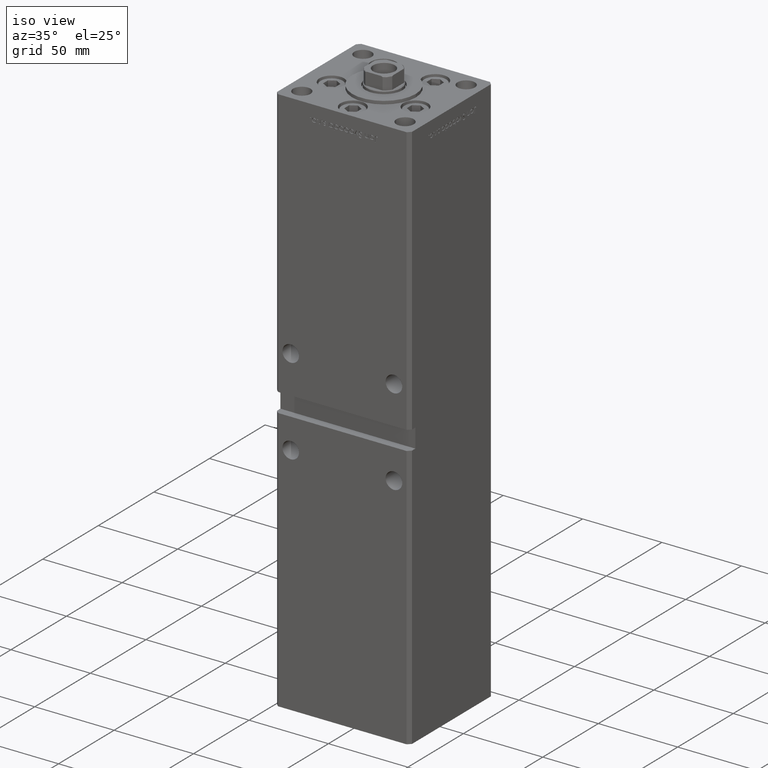
[diagram: clean part render]
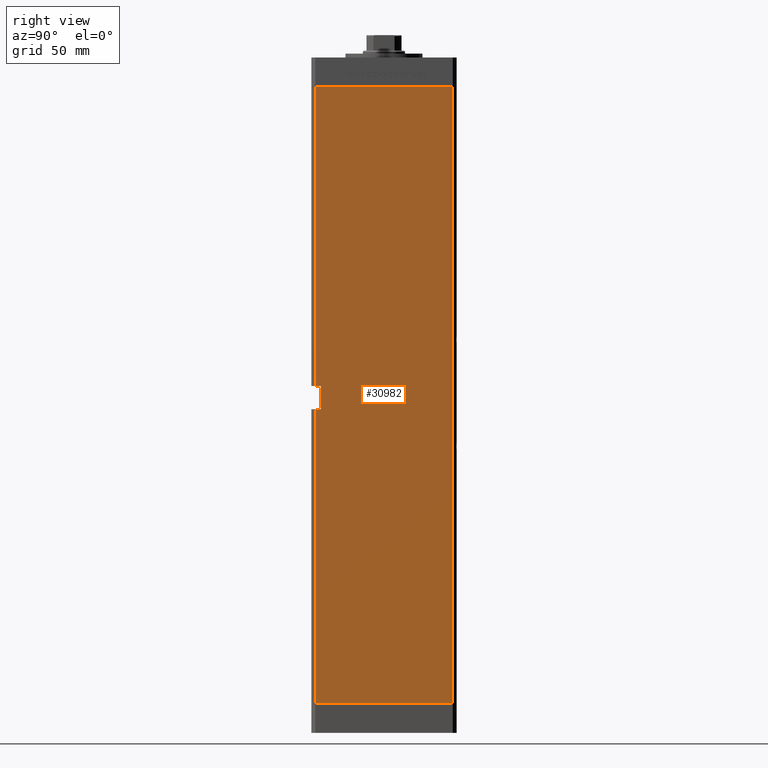
[diagram: tour spotlight — one face highlighted and labeled with its STEP entity id]
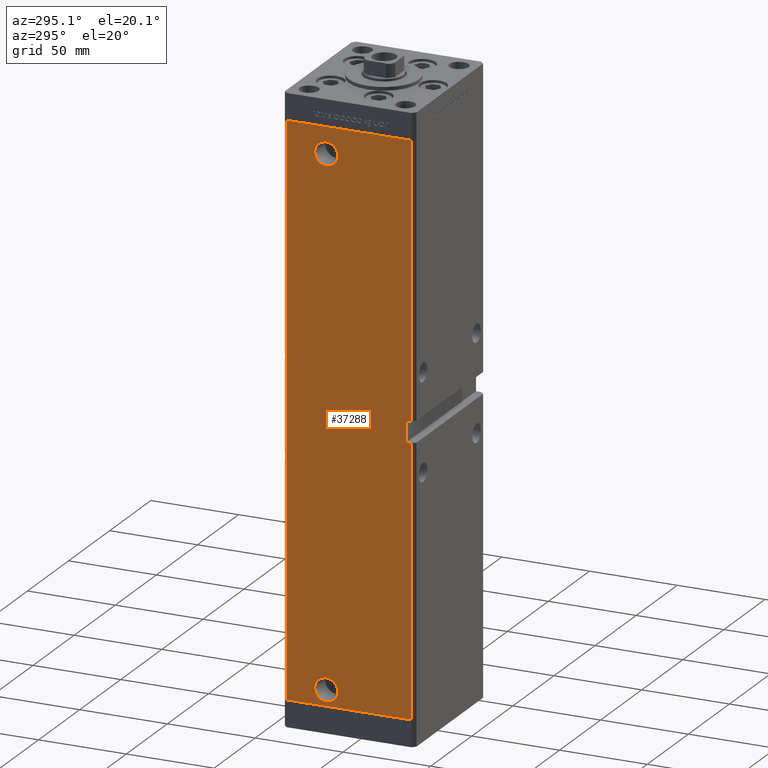
[diagram: tour spotlight — one face highlighted and labeled with its STEP entity id]
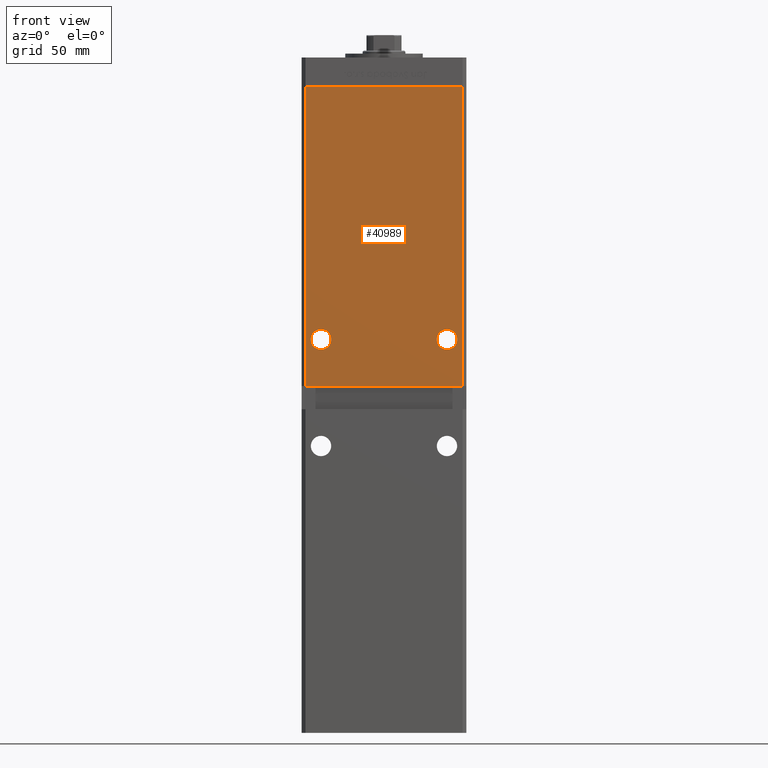
[diagram: tour spotlight — one face highlighted and labeled with its STEP entity id]
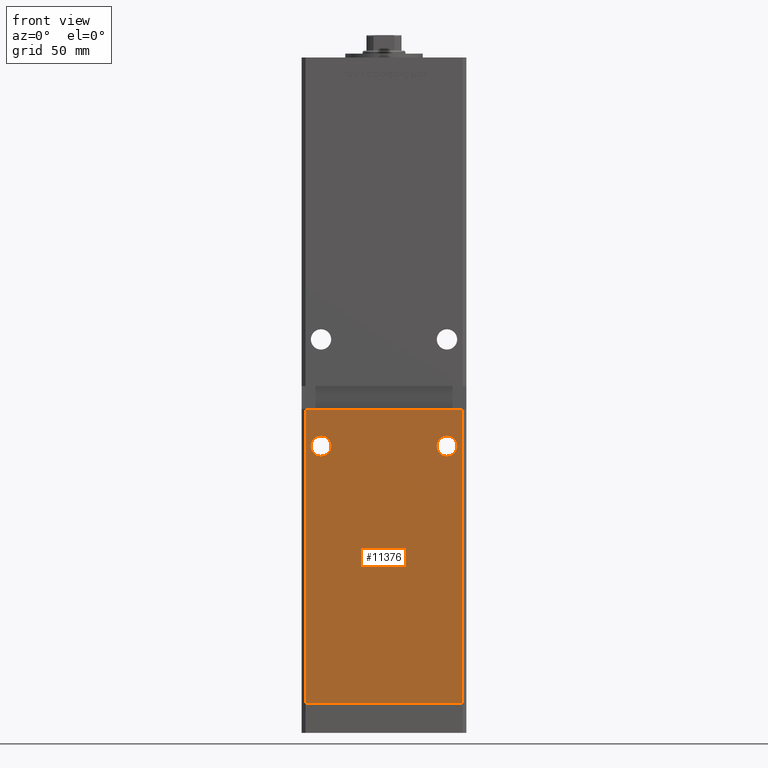
[diagram: tour spotlight — one face highlighted and labeled with its STEP entity id]
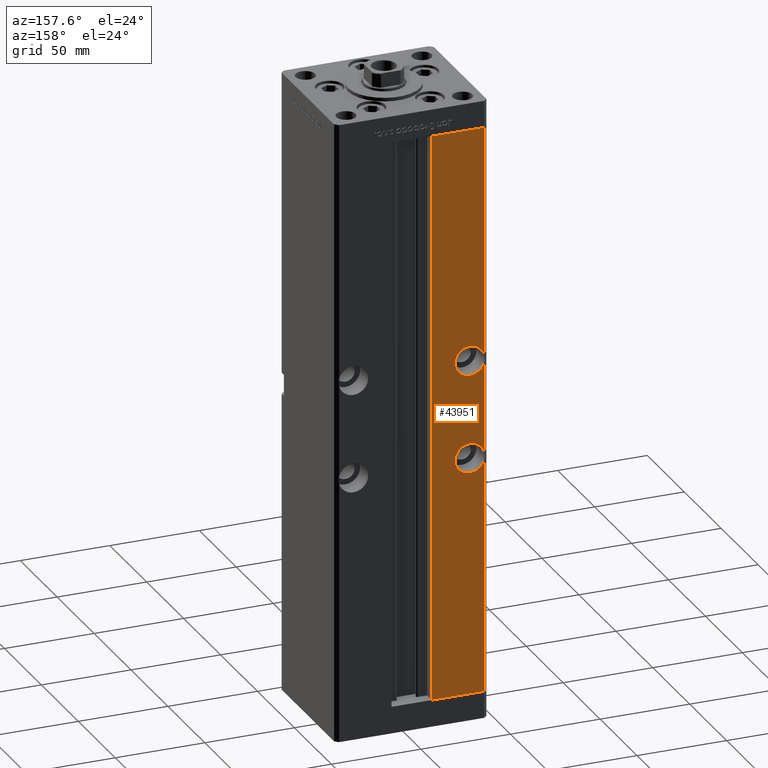
[diagram: tour spotlight — one face highlighted and labeled with its STEP entity id]
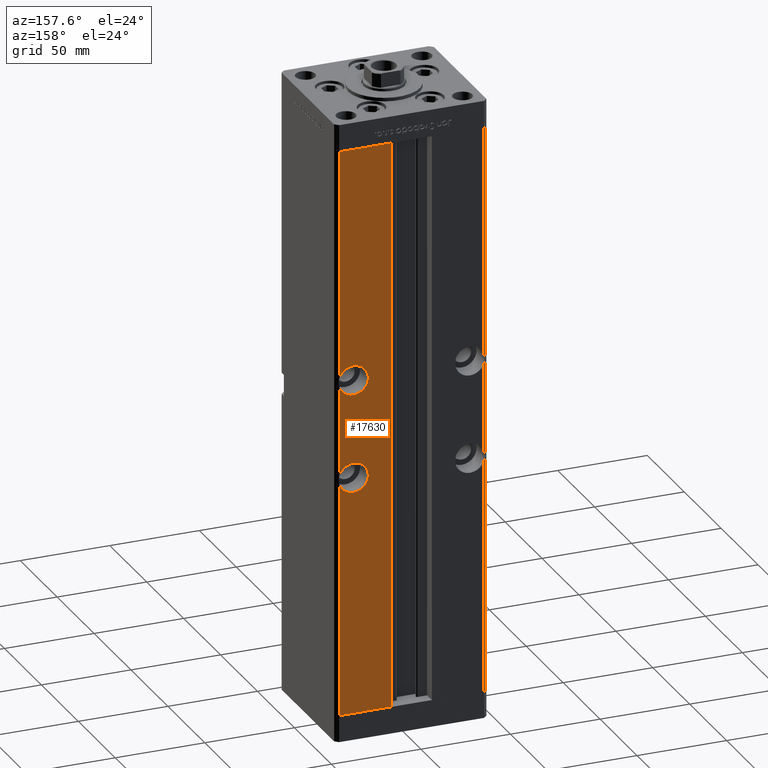
[diagram: tour spotlight — one face highlighted and labeled with its STEP entity id]
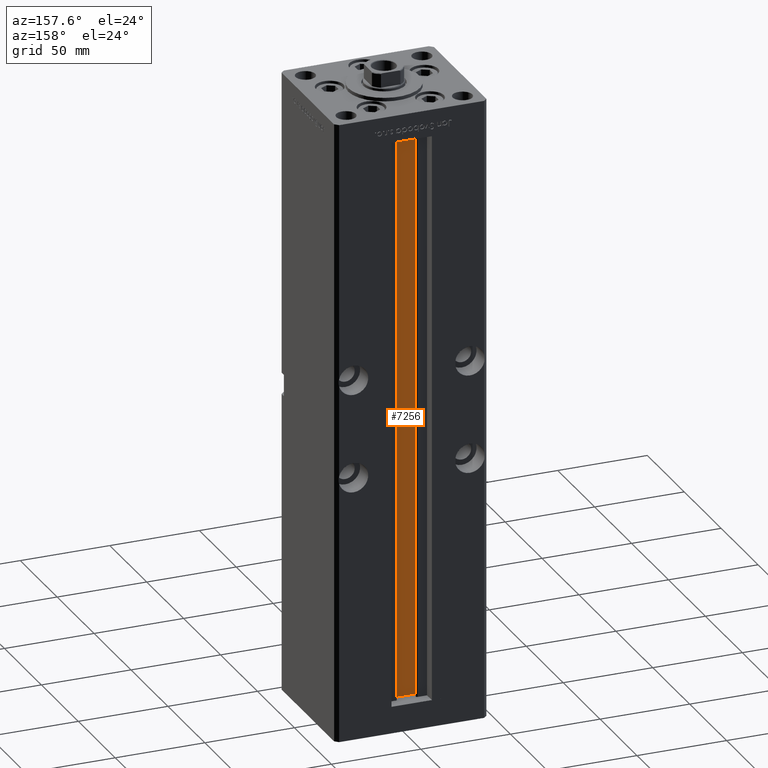
[diagram: tour spotlight — one face highlighted and labeled with its STEP entity id]
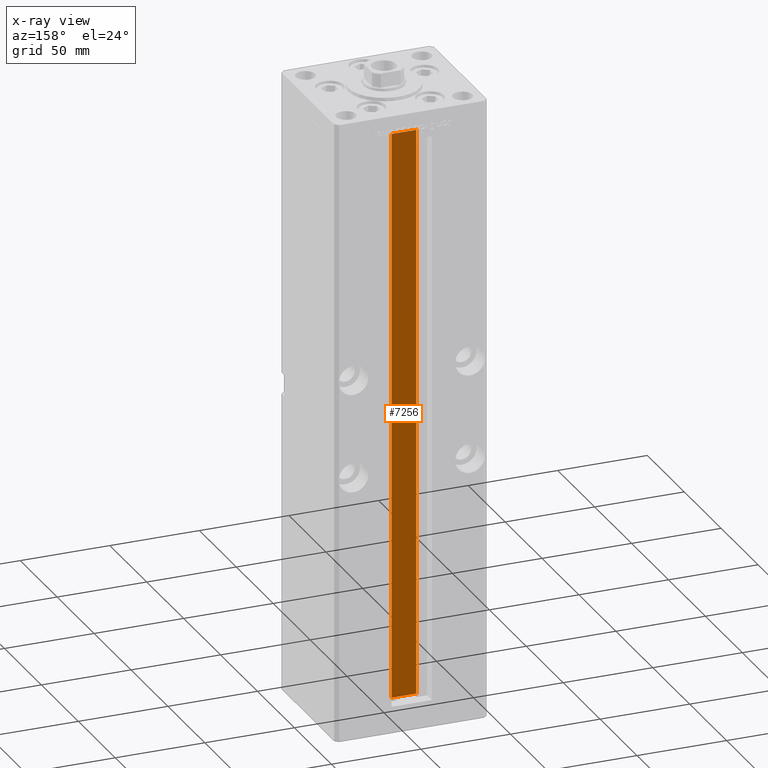
[diagram: x-ray of the same camera — body ghosted, this tour face saturated]
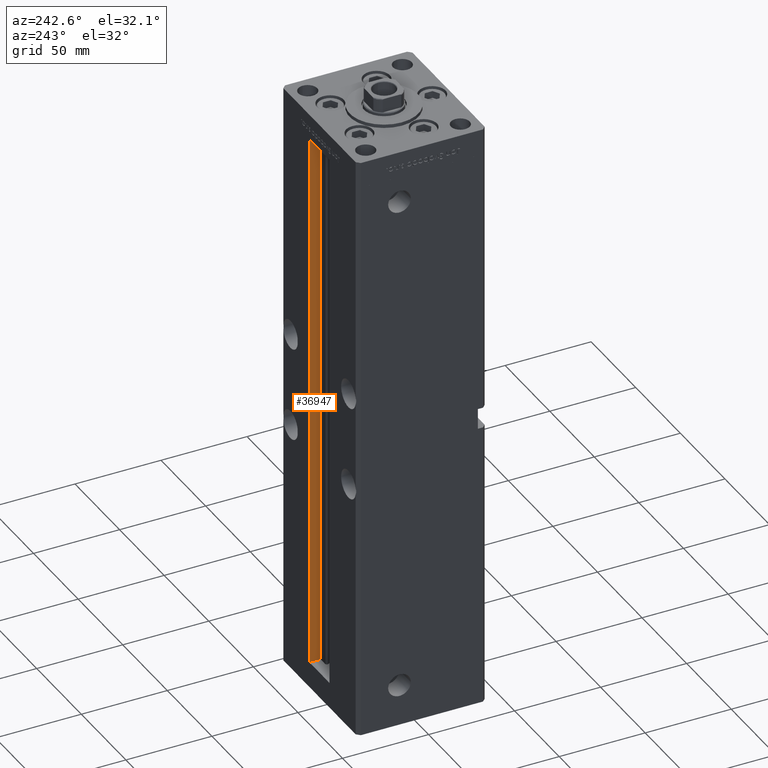
[diagram: tour spotlight — one face highlighted and labeled with its STEP entity id]
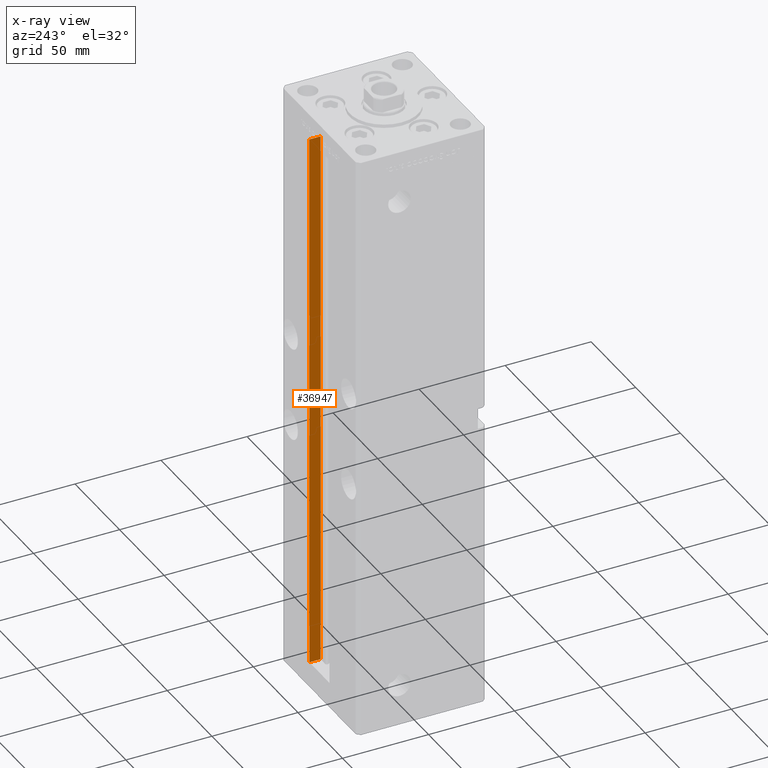
[diagram: x-ray of the same camera — body ghosted, this tour face saturated]
A machine part: a face-by-face anatomy tour. The part has 1212 B-rep faces; the first image is the clean iso view, then the 8 largest visible faces are spotlighted one at a time (largest first), each with its STEP entity span.

Face 1 — right view, entity #30982. In plain terms, the highlighted planar face has unit normal (1, -0, 0).
Definition (entity closure, byte-faithful):
#895 = AXIS2_PLACEMENT_3D ( 'NONE', #47199, #49003, #20256 ) ;
#1076 = LINE ( 'NONE', #43503, #40846 ) ;
#1231 = EDGE_LOOP ( 'NONE', ( #7639, #21067, #43613, #42086, #30536, #13063, #3283, #7102 ) ) ;
#1660 = LINE ( 'NONE', #18049, #21971 ) ;
#3283 = ORIENTED_EDGE ( 'NONE', *, *, #15319, .F. ) ;
#3385 = CARTESIAN_POINT ( 'NONE',  ( 42.50000000000001421, 35.50000000000000711, 318.5000000000000000 ) ) ;
#5514 = VECTOR ( 'NONE', #14368, 1000.000000000000000 ) ;
#6686 = DIRECTION ( 'NONE',  ( -3.909236002201255146E-16, -1.000000000000000000, 0.000000000000000000 ) ) ;
#6778 = CARTESIAN_POINT ( 'NONE',  ( 42.49999999999998579, -35.50000000000000711, 318.5000000000000000 ) ) ;
#6928 = LINE ( 'NONE', #31400, #32256 ) ;
#7102 = ORIENTED_EDGE ( 'NONE', *, *, #15494, .F. ) ;
#7639 = ORIENTED_EDGE ( 'NONE', *, *, #8468, .T. ) ;
#8254 = VECTOR ( 'NONE', #21694, 1000.000000000000000 ) ;
#8468 = EDGE_CURVE ( 'NONE', #19812, #30968, #6928, .T. ) ;
#9122 = VECTOR ( 'NONE', #12567, 1000.000000000000000 ) ;
#9615 = EDGE_CURVE ( 'NONE', #18146, #49271, #44484, .T. ) ;
#9982 = EDGE_CURVE ( 'NONE', #18146, #40383, #1076, .T. ) ;
#10177 = EDGE_CURVE ( 'NONE', #30968, #15650, #52900, .T. ) ;
#12567 = DIRECTION ( 'NONE',  ( -0.000000000000000000, -0.000000000000000000, -1.000000000000000000 ) ) ;
#13063 = ORIENTED_EDGE ( 'NONE', *, *, #51801, .T. ) ;
#14368 = DIRECTION ( 'NONE',  ( -3.909236002201255146E-16, -1.000000000000000000, 0.000000000000000000 ) ) ;
#15319 = EDGE_CURVE ( 'NONE', #50616, #48752, #43512, .T. ) ;
#15494 = EDGE_CURVE ( 'NONE', #19812, #50616, #33541, .T. ) ;
#15650 = VERTEX_POINT ( 'NONE', #19240 ) ;
#16204 = CARTESIAN_POINT ( 'NONE',  ( 42.49999999999999289, -35.50000000000000711, 152.0000000000000568 ) ) ;
#18049 = CARTESIAN_POINT ( 'NONE',  ( 42.49999999999998579, -35.50000000000000711, 318.5000000000000000 ) ) ;
#18146 = VERTEX_POINT ( 'NONE', #23468 ) ;
#18401 = CARTESIAN_POINT ( 'NONE',  ( 42.49999999999999289, -32.50000000000000711, 164.0000000000000568 ) ) ;
#19240 = CARTESIAN_POINT ( 'NONE',  ( 42.49999999999998579, -35.50000000000000711, 0.000000000000000000 ) ) ;
#19812 = VERTEX_POINT ( 'NONE', #53096 ) ;
#20256 = DIRECTION ( 'NONE',  ( 3.909236002201255146E-16, 1.000000000000000000, 0.000000000000000000 ) ) ;
#21067 = ORIENTED_EDGE ( 'NONE', *, *, #10177, .T. ) ;
#21694 = DIRECTION ( 'NONE',  ( -0.000000000000000000, -0.000000000000000000, 1.000000000000000000 ) ) ;
#21971 = VECTOR ( 'NONE', #34444, 1000.000000000000000 ) ;
#22968 = CARTESIAN_POINT ( 'NONE',  ( 42.50000000000001421, 35.50000000000000711, 0.000000000000000000 ) ) ;
#23408 = CARTESIAN_POINT ( 'NONE',  ( 42.49999999999999289, -35.50000000000000711, 164.0000000000000568 ) ) ;
#23468 = CARTESIAN_POINT ( 'NONE',  ( 42.50000000000001421, 35.50000000000000711, 318.5000000000000000 ) ) ;
#24268 = PLANE ( 'NONE',  #895 ) ;
#24675 = CARTESIAN_POINT ( 'NONE',  ( 42.50000000000001421, 35.50000000000000711, 0.000000000000000000 ) ) ;
#26831 = DIRECTION ( 'NONE',  ( -0.000000000000000000, -1.000000000000000000, -0.000000000000000000 ) ) ;
#30295 = CARTESIAN_POINT ( 'NONE',  ( 42.49999999999999289, -32.50000000000000711, 164.0000000000000568 ) ) ;
#30536 = ORIENTED_EDGE ( 'NONE', *, *, #9982, .T. ) ;
#30968 = VERTEX_POINT ( 'NONE', #16204 ) ;
#30982 = ADVANCED_FACE ( 'NONE', ( #44958 ), #24268, .T. ) ;
#31400 = CARTESIAN_POINT ( 'NONE',  ( 42.49999999999999289, -32.50000000000000711, 152.0000000000000568 ) ) ;
#32256 = VECTOR ( 'NONE', #26831, 1000.000000000000000 ) ;
#33269 = CARTESIAN_POINT ( 'NONE',  ( 42.49999999999998579, -35.50000000000000711, 318.5000000000000000 ) ) ;
#33541 = LINE ( 'NONE', #30295, #8254 ) ;
#34444 = DIRECTION ( 'NONE',  ( -0.000000000000000000, -0.000000000000000000, -1.000000000000000000 ) ) ;
#35190 = DIRECTION ( 'NONE',  ( -0.000000000000000000, -1.000000000000000000, -0.000000000000000000 ) ) ;
#36501 = VECTOR ( 'NONE', #45283, 1000.000000000000000 ) ;
#40383 = VERTEX_POINT ( 'NONE', #6778 ) ;
#40846 = VECTOR ( 'NONE', #6686, 1000.000000000000000 ) ;
#42086 = ORIENTED_EDGE ( 'NONE', *, *, #9615, .F. ) ;
#42598 = VECTOR ( 'NONE', #35190, 1000.000000000000000 ) ;
#43503 = CARTESIAN_POINT ( 'NONE',  ( 42.50000000000001421, 35.50000000000000711, 318.5000000000000000 ) ) ;
#43512 = LINE ( 'NONE', #51850, #42598 ) ;
#43613 = ORIENTED_EDGE ( 'NONE', *, *, #46218, .F. ) ;
#43650 = LINE ( 'NONE', #22968, #5514 ) ;
#44484 = LINE ( 'NONE', #3385, #36501 ) ;
#44958 = FACE_OUTER_BOUND ( 'NONE', #1231, .T. ) ;
#45283 = DIRECTION ( 'NONE',  ( -0.000000000000000000, -0.000000000000000000, -1.000000000000000000 ) ) ;
#46218 = EDGE_CURVE ( 'NONE', #49271, #15650, #43650, .T. ) ;
#47199 = CARTESIAN_POINT ( 'NONE',  ( 42.50000000000001421, 35.50000000000000711, 318.5000000000000000 ) ) ;
#48752 = VERTEX_POINT ( 'NONE', #23408 ) ;
#49003 = DIRECTION ( 'NONE',  ( 1.000000000000000000, -3.909236002201255146E-16, 0.000000000000000000 ) ) ;
#49271 = VERTEX_POINT ( 'NONE', #24675 ) ;
#50616 = VERTEX_POINT ( 'NONE', #18401 ) ;
#51801 = EDGE_CURVE ( 'NONE', #40383, #48752, #1660, .T. ) ;
#51850 = CARTESIAN_POINT ( 'NONE',  ( 42.49999999999999289, -32.50000000000000711, 164.0000000000000568 ) ) ;
#52900 = LINE ( 'NONE', #33269, #9122 ) ;
#53096 = CARTESIAN_POINT ( 'NONE',  ( 42.49999999999998579, -32.50000000000000000, 152.0000000000000568 ) ) ;

Face 2 — auxiliary view, entity #37288. In plain terms, the highlighted planar face has unit normal (1, 0, 0).
Definition (entity closure, byte-faithful):
#265 = CARTESIAN_POINT ( 'NONE',  ( -42.50000000000000000, 19.58000000000003737, 303.5000000000000000 ) ) ;
#351 = EDGE_CURVE ( 'NONE', #17805, #46823, #16245, .T. ) ;
#576 = DIRECTION ( 'NONE',  ( -3.909236002201255146E-16, 1.000000000000000000, 0.000000000000000000 ) ) ;
#672 = EDGE_CURVE ( 'NONE', #22047, #30263, #52705, .T. ) ;
#838 = AXIS2_PLACEMENT_3D ( 'NONE', #42252, #45760, #46025 ) ;
#1626 = VERTEX_POINT ( 'NONE', #14487 ) ;
#2415 = CARTESIAN_POINT ( 'NONE',  ( -42.50000000000000000, 12.99999999999999467, 303.5000000000000000 ) ) ;
#2421 = LINE ( 'NONE', #34140, #9483 ) ;
#2486 = EDGE_LOOP ( 'NONE', ( #47949, #50380, #50273, #37388, #9790, #11270, #53109, #21613 ) ) ;
#2993 = DIRECTION ( 'NONE',  ( -0.000000000000000000, -0.000000000000000000, -1.000000000000000000 ) ) ;
#3507 = EDGE_CURVE ( 'NONE', #46823, #17805, #18349, .T. ) ;
#3817 = ORIENTED_EDGE ( 'NONE', *, *, #31594, .F. ) ;
#4577 = DIRECTION ( 'NONE',  ( 3.909236002201255146E-16, -1.000000000000000000, 0.000000000000000000 ) ) ;
#5237 = AXIS2_PLACEMENT_3D ( 'NONE', #18262, #13710, #34661 ) ;
#5574 = CARTESIAN_POINT ( 'NONE',  ( -42.50000000000001421, 35.50000000000000711, 318.5000000000000000 ) ) ;
#6426 = EDGE_CURVE ( 'NONE', #34920, #22047, #45055, .T. ) ;
#7084 = AXIS2_PLACEMENT_3D ( 'NONE', #16157, #45181, #576 ) ;
#8816 = LINE ( 'NONE', #5574, #38832 ) ;
#9090 = DIRECTION ( 'NONE',  ( -0.000000000000000000, -0.000000000000000000, -1.000000000000000000 ) ) ;
#9483 = VECTOR ( 'NONE', #13966, 1000.000000000000000 ) ;
#9790 = ORIENTED_EDGE ( 'NONE', *, *, #672, .F. ) ;
#11270 = ORIENTED_EDGE ( 'NONE', *, *, #6426, .F. ) ;
#11747 = DIRECTION ( 'NONE',  ( 3.909236002201255146E-16, -1.000000000000000000, 0.000000000000000000 ) ) ;
#12429 = CARTESIAN_POINT ( 'NONE',  ( -42.49999999999997158, -35.50000000000002132, 164.0000000000000568 ) ) ;
#12663 = PLANE ( 'NONE',  #7084 ) ;
#13610 = DIRECTION ( 'NONE',  ( -1.734723475976805517E-15, 0.000000000000000000, -1.000000000000000000 ) ) ;
#13617 = CARTESIAN_POINT ( 'NONE',  ( -42.50000000000001421, 35.50000000000000711, 318.5000000000000000 ) ) ;
#13710 = DIRECTION ( 'NONE',  ( -1.000000000000000000, -2.275047181608927644E-16, 0.000000000000000000 ) ) ;
#13966 = DIRECTION ( 'NONE',  ( -0.000000000000000000, -0.000000000000000000, -1.000000000000000000 ) ) ;
#14402 = EDGE_CURVE ( 'NONE', #19667, #25492, #17203, .T. ) ;
#14487 = CARTESIAN_POINT ( 'NONE',  ( -42.50000000000000000, 19.57999999999999829, 9.000000000000007105 ) ) ;
#14649 = VECTOR ( 'NONE', #36249, 1000.000000000000000 ) ;
#16157 = CARTESIAN_POINT ( 'NONE',  ( -42.50000000000001421, 35.50000000000000711, 318.5000000000000000 ) ) ;
#16245 = CIRCLE ( 'NONE', #838, 6.580000000000044480 ) ;
#16908 = EDGE_CURVE ( 'NONE', #46977, #46720, #18432, .T. ) ;
#17163 = CARTESIAN_POINT ( 'NONE',  ( -42.49999999999998579, -35.50000000000000711, 318.5000000000000000 ) ) ;
#17203 = LINE ( 'NONE', #33863, #49434 ) ;
#17805 = VERTEX_POINT ( 'NONE', #265 ) ;
#17813 = CIRCLE ( 'NONE', #22108, 6.580000000000002736 ) ;
#18262 = CARTESIAN_POINT ( 'NONE',  ( -42.50000000000000000, 12.99999999999999467, 9.000000000000007105 ) ) ;
#18349 = CIRCLE ( 'NONE', #30377, 6.580000000000044480 ) ;
#18421 = LINE ( 'NONE', #30269, #49853 ) ;
#18432 = LINE ( 'NONE', #34835, #51241 ) ;
#18784 = DIRECTION ( 'NONE',  ( -1.000000000000000000, -2.275047181608927644E-16, 0.000000000000000000 ) ) ;
#19062 = VERTEX_POINT ( 'NONE', #45564 ) ;
#19449 = EDGE_CURVE ( 'NONE', #19062, #1626, #17813, .T. ) ;
#19667 = VERTEX_POINT ( 'NONE', #43158 ) ;
#20703 = CARTESIAN_POINT ( 'NONE',  ( -42.50000000000000000, 12.99999999999999467, 9.000000000000007105 ) ) ;
#21139 = VERTEX_POINT ( 'NONE', #36375 ) ;
#21613 = ORIENTED_EDGE ( 'NONE', *, *, #14402, .T. ) ;
#22047 = VERTEX_POINT ( 'NONE', #17163 ) ;
#22108 = AXIS2_PLACEMENT_3D ( 'NONE', #20703, #49186, #42370 ) ;
#23399 = CARTESIAN_POINT ( 'NONE',  ( -42.49999999999998579, -35.50000000000000711, 318.5000000000000000 ) ) ;
#25492 = VERTEX_POINT ( 'NONE', #45913 ) ;
#28762 = EDGE_CURVE ( 'NONE', #21139, #46977, #18421, .T. ) ;
#29285 = CARTESIAN_POINT ( 'NONE',  ( -42.49999999999998579, -32.50000000000000711, 152.0000000000000568 ) ) ;
#30263 = VERTEX_POINT ( 'NONE', #12429 ) ;
#30269 = CARTESIAN_POINT ( 'NONE',  ( -42.49999999999997158, -32.50000000000000711, 164.0000000000000568 ) ) ;
#30377 = AXIS2_PLACEMENT_3D ( 'NONE', #2415, #18784, #35189 ) ;
#31043 = ORIENTED_EDGE ( 'NONE', *, *, #351, .F. ) ;
#31430 = CARTESIAN_POINT ( 'NONE',  ( -42.49999999999997158, -32.50000000000000711, 164.0000000000000568 ) ) ;
#31551 = EDGE_CURVE ( 'NONE', #46720, #25492, #2421, .T. ) ;
#31594 = EDGE_CURVE ( 'NONE', #1626, #19062, #50695, .T. ) ;
#31672 = EDGE_CURVE ( 'NONE', #21139, #30263, #44305, .T. ) ;
#33863 = CARTESIAN_POINT ( 'NONE',  ( -42.50000000000001421, 35.50000000000000711, 0.000000000000000000 ) ) ;
#34140 = CARTESIAN_POINT ( 'NONE',  ( -42.49999999999998579, -35.50000000000000711, 318.5000000000000000 ) ) ;
#34661 = DIRECTION ( 'NONE',  ( 0.000000000000000000, -1.000000000000000000, 0.000000000000000000 ) ) ;
#34835 = CARTESIAN_POINT ( 'NONE',  ( -42.49999999999998579, -32.50000000000000711, 152.0000000000000568 ) ) ;
#34920 = VERTEX_POINT ( 'NONE', #13617 ) ;
#35189 = DIRECTION ( 'NONE',  ( 0.000000000000000000, -1.000000000000000000, 0.000000000000000000 ) ) ;
#36249 = DIRECTION ( 'NONE',  ( -0.000000000000000000, -1.000000000000000000, -0.000000000000000000 ) ) ;
#36375 = CARTESIAN_POINT ( 'NONE',  ( -42.49999999999997158, -32.50000000000000711, 164.0000000000000568 ) ) ;
#36694 = EDGE_CURVE ( 'NONE', #34920, #19667, #8816, .T. ) ;
#37118 = FACE_BOUND ( 'NONE', #42936, .T. ) ;
#37288 = ADVANCED_FACE ( 'NONE', ( #37385, #37118, #49482 ), #12663, .F. ) ;
#37385 = FACE_OUTER_BOUND ( 'NONE', #2486, .T. ) ;
#37388 = ORIENTED_EDGE ( 'NONE', *, *, #31672, .T. ) ;
#38832 = VECTOR ( 'NONE', #9090, 1000.000000000000000 ) ;
#39874 = VECTOR ( 'NONE', #11747, 1000.000000000000000 ) ;
#42252 = CARTESIAN_POINT ( 'NONE',  ( -42.50000000000000000, 12.99999999999999467, 303.5000000000000000 ) ) ;
#42370 = DIRECTION ( 'NONE',  ( 0.000000000000000000, -1.000000000000000000, 0.000000000000000000 ) ) ;
#42661 = EDGE_LOOP ( 'NONE', ( #53086, #31043 ) ) ;
#42936 = EDGE_LOOP ( 'NONE', ( #43676, #3817 ) ) ;
#43153 = DIRECTION ( 'NONE',  ( -0.000000000000000000, -1.000000000000000000, -0.000000000000000000 ) ) ;
#43158 = CARTESIAN_POINT ( 'NONE',  ( -42.50000000000001421, 35.50000000000000711, 0.000000000000000000 ) ) ;
#43676 = ORIENTED_EDGE ( 'NONE', *, *, #19449, .F. ) ;
#44305 = LINE ( 'NONE', #31430, #14649 ) ;
#45055 = LINE ( 'NONE', #45330, #39874 ) ;
#45181 = DIRECTION ( 'NONE',  ( 1.000000000000000000, 3.909236002201255146E-16, -0.000000000000000000 ) ) ;
#45330 = CARTESIAN_POINT ( 'NONE',  ( -42.50000000000001421, 35.50000000000000711, 318.5000000000000000 ) ) ;
#45564 = CARTESIAN_POINT ( 'NONE',  ( -42.50000000000000000, 6.419999999999991935, 9.000000000000007105 ) ) ;
#45760 = DIRECTION ( 'NONE',  ( -1.000000000000000000, -2.275047181608927644E-16, 0.000000000000000000 ) ) ;
#45913 = CARTESIAN_POINT ( 'NONE',  ( -42.49999999999998579, -35.50000000000000711, 0.000000000000000000 ) ) ;
#46025 = DIRECTION ( 'NONE',  ( 0.000000000000000000, -1.000000000000000000, 0.000000000000000000 ) ) ;
#46720 = VERTEX_POINT ( 'NONE', #50819 ) ;
#46823 = VERTEX_POINT ( 'NONE', #47835 ) ;
#46977 = VERTEX_POINT ( 'NONE', #29285 ) ;
#47835 = CARTESIAN_POINT ( 'NONE',  ( -42.50000000000000000, 6.419999999999950191, 303.5000000000000000 ) ) ;
#47949 = ORIENTED_EDGE ( 'NONE', *, *, #31551, .F. ) ;
#49186 = DIRECTION ( 'NONE',  ( -1.000000000000000000, -2.275047181608927644E-16, 0.000000000000000000 ) ) ;
#49434 = VECTOR ( 'NONE', #4577, 1000.000000000000000 ) ;
#49482 = FACE_BOUND ( 'NONE', #42661, .T. ) ;
#49853 = VECTOR ( 'NONE', #13610, 1000.000000000000000 ) ;
#50273 = ORIENTED_EDGE ( 'NONE', *, *, #28762, .F. ) ;
#50380 = ORIENTED_EDGE ( 'NONE', *, *, #16908, .F. ) ;
#50695 = CIRCLE ( 'NONE', #5237, 6.580000000000002736 ) ;
#50819 = CARTESIAN_POINT ( 'NONE',  ( -42.49999999999998579, -35.49999999999972289, 152.0000000000000568 ) ) ;
#51241 = VECTOR ( 'NONE', #43153, 1000.000000000000000 ) ;
#52317 = VECTOR ( 'NONE', #2993, 1000.000000000000000 ) ;
#52705 = LINE ( 'NONE', #23399, #52317 ) ;
#53086 = ORIENTED_EDGE ( 'NONE', *, *, #3507, .F. ) ;
#53109 = ORIENTED_EDGE ( 'NONE', *, *, #36694, .T. ) ;

Face 3 — front view, entity #40989. In plain terms, the highlighted planar face has unit normal (0, 1, 0).
Definition (entity closure, byte-faithful):
#126 = LINE ( 'NONE', #8717, #16001 ) ;
#278 = LINE ( 'NONE', #16661, #46663 ) ;
#902 = AXIS2_PLACEMENT_3D ( 'NONE', #49424, #12607, #19613 ) ;
#1103 = ORIENTED_EDGE ( 'NONE', *, *, #5742, .T. ) ;
#1164 = VERTEX_POINT ( 'NONE', #26244 ) ;
#1308 = FACE_BOUND ( 'NONE', #33868, .T. ) ;
#1364 = ORIENTED_EDGE ( 'NONE', *, *, #3333, .T. ) ;
#2522 = CARTESIAN_POINT ( 'NONE',  ( -32.50000000000000000, -37.50000000000000711, 193.2500000000000000 ) ) ;
#3331 = EDGE_CURVE ( 'NONE', #1164, #45515, #278, .T. ) ;
#3333 = EDGE_CURVE ( 'NONE', #4674, #45175, #50096, .T. ) ;
#4284 = FACE_OUTER_BOUND ( 'NONE', #30864, .T. ) ;
#4674 = VERTEX_POINT ( 'NONE', #28122 ) ;
#5258 = ORIENTED_EDGE ( 'NONE', *, *, #27352, .F. ) ;
#5742 = EDGE_CURVE ( 'NONE', #1164, #50871, #13538, .T. ) ;
#7376 = AXIS2_PLACEMENT_3D ( 'NONE', #29411, #13006, #29684 ) ;
#8717 = CARTESIAN_POINT ( 'NONE',  ( -42.49999999999997158, -37.50000000000000711, 164.0000000000000568 ) ) ;
#8834 = DIRECTION ( 'NONE',  ( 0.000000000000000000, 1.000000000000000000, 0.000000000000000000 ) ) ;
#11020 = EDGE_CURVE ( 'NONE', #16230, #21466, #30554, .T. ) ;
#12110 = EDGE_CURVE ( 'NONE', #25228, #50871, #126, .T. ) ;
#12607 = DIRECTION ( 'NONE',  ( 0.000000000000000000, 1.000000000000000000, 0.000000000000000000 ) ) ;
#13006 = DIRECTION ( 'NONE',  ( 0.000000000000000000, 1.000000000000000000, 0.000000000000000000 ) ) ;
#13187 = AXIS2_PLACEMENT_3D ( 'NONE', #50002, #41934, #38433 ) ;
#13538 = LINE ( 'NONE', #14570, #22724 ) ;
#14570 = CARTESIAN_POINT ( 'NONE',  ( -40.49999999999998579, -37.50000000000000711, 318.5000000000000000 ) ) ;
#16001 = VECTOR ( 'NONE', #17317, 1000.000000000000000 ) ;
#16230 = VERTEX_POINT ( 'NONE', #22104 ) ;
#16564 = CARTESIAN_POINT ( 'NONE',  ( 40.49999999999998579, -37.50000000000000711, 318.5000000000000000 ) ) ;
#16661 = CARTESIAN_POINT ( 'NONE',  ( -40.49999999999998579, -37.50000000000000711, 318.5000000000000000 ) ) ;
#17317 = DIRECTION ( 'NONE',  ( -1.000000000000000000, -0.000000000000000000, -0.000000000000000000 ) ) ;
#17993 = DIRECTION ( 'NONE',  ( 1.000000000000000000, 0.000000000000000000, 0.000000000000000000 ) ) ;
#19426 = CARTESIAN_POINT ( 'NONE',  ( 32.50000000000000000, -37.50000000000000711, 188.0000000000000000 ) ) ;
#19613 = DIRECTION ( 'NONE',  ( 0.000000000000000000, 0.000000000000000000, 1.000000000000000000 ) ) ;
#20571 = AXIS2_PLACEMENT_3D ( 'NONE', #19426, #51965, #32055 ) ;
#20673 = PLANE ( 'NONE',  #39817 ) ;
#20989 = CARTESIAN_POINT ( 'NONE',  ( 40.49999999999999289, -37.50000000000000711, 164.0000000000000568 ) ) ;
#21466 = VERTEX_POINT ( 'NONE', #40610 ) ;
#22104 = CARTESIAN_POINT ( 'NONE',  ( 32.50000000000000000, -37.50000000000000711, 193.2500000000000000 ) ) ;
#22724 = VECTOR ( 'NONE', #30986, 1000.000000000000000 ) ;
#24014 = CIRCLE ( 'NONE', #20571, 5.250000000000004441 ) ;
#25228 = VERTEX_POINT ( 'NONE', #20989 ) ;
#25793 = VECTOR ( 'NONE', #44534, 1000.000000000000000 ) ;
#26242 = EDGE_CURVE ( 'NONE', #45175, #4674, #30102, .T. ) ;
#26244 = CARTESIAN_POINT ( 'NONE',  ( -40.49999999999998579, -37.50000000000000711, 318.5000000000000000 ) ) ;
#27352 = EDGE_CURVE ( 'NONE', #45515, #25228, #52358, .T. ) ;
#28122 = CARTESIAN_POINT ( 'NONE',  ( -32.50000000000000000, -37.50000000000000711, 182.7500000000000000 ) ) ;
#28660 = ORIENTED_EDGE ( 'NONE', *, *, #26242, .T. ) ;
#29132 = EDGE_CURVE ( 'NONE', #21466, #16230, #24014, .T. ) ;
#29411 = CARTESIAN_POINT ( 'NONE',  ( 32.50000000000000000, -37.50000000000000711, 188.0000000000000000 ) ) ;
#29465 = ORIENTED_EDGE ( 'NONE', *, *, #12110, .F. ) ;
#29684 = DIRECTION ( 'NONE',  ( 0.000000000000000000, 0.000000000000000000, 1.000000000000000000 ) ) ;
#30102 = CIRCLE ( 'NONE', #902, 5.250000000000004441 ) ;
#30554 = CIRCLE ( 'NONE', #7376, 5.250000000000004441 ) ;
#30864 = EDGE_LOOP ( 'NONE', ( #1103, #29465, #5258, #40477 ) ) ;
#30986 = DIRECTION ( 'NONE',  ( -0.000000000000000000, -0.000000000000000000, -1.000000000000000000 ) ) ;
#31203 = CARTESIAN_POINT ( 'NONE',  ( 40.49999999999998579, -37.50000000000000711, 318.5000000000000000 ) ) ;
#32055 = DIRECTION ( 'NONE',  ( 0.000000000000000000, 0.000000000000000000, 1.000000000000000000 ) ) ;
#33868 = EDGE_LOOP ( 'NONE', ( #36704, #36173 ) ) ;
#36173 = ORIENTED_EDGE ( 'NONE', *, *, #29132, .T. ) ;
#36704 = ORIENTED_EDGE ( 'NONE', *, *, #11020, .T. ) ;
#38122 = EDGE_LOOP ( 'NONE', ( #28660, #1364 ) ) ;
#38433 = DIRECTION ( 'NONE',  ( 0.000000000000000000, 0.000000000000000000, 1.000000000000000000 ) ) ;
#39817 = AXIS2_PLACEMENT_3D ( 'NONE', #50223, #8834, #49965 ) ;
#40477 = ORIENTED_EDGE ( 'NONE', *, *, #3331, .F. ) ;
#40610 = CARTESIAN_POINT ( 'NONE',  ( 32.50000000000000000, -37.50000000000000711, 182.7500000000000000 ) ) ;
#40989 = ADVANCED_FACE ( 'NONE', ( #1308, #41094, #4284 ), #20673, .F. ) ;
#41094 = FACE_BOUND ( 'NONE', #38122, .T. ) ;
#41934 = DIRECTION ( 'NONE',  ( 0.000000000000000000, 1.000000000000000000, 0.000000000000000000 ) ) ;
#44534 = DIRECTION ( 'NONE',  ( -0.000000000000000000, -0.000000000000000000, -1.000000000000000000 ) ) ;
#45175 = VERTEX_POINT ( 'NONE', #2522 ) ;
#45515 = VERTEX_POINT ( 'NONE', #31203 ) ;
#46663 = VECTOR ( 'NONE', #17993, 1000.000000000000000 ) ;
#49424 = CARTESIAN_POINT ( 'NONE',  ( -32.50000000000000000, -37.50000000000000711, 188.0000000000000000 ) ) ;
#49965 = DIRECTION ( 'NONE',  ( 0.000000000000000000, -0.000000000000000000, 1.000000000000000000 ) ) ;
#50002 = CARTESIAN_POINT ( 'NONE',  ( -32.50000000000000000, -37.50000000000000711, 188.0000000000000000 ) ) ;
#50083 = CARTESIAN_POINT ( 'NONE',  ( -40.49999999999998579, -37.50000000000000711, 164.0000000000000568 ) ) ;
#50096 = CIRCLE ( 'NONE', #13187, 5.250000000000004441 ) ;
#50223 = CARTESIAN_POINT ( 'NONE',  ( -40.49999999999998579, -37.50000000000000711, 318.5000000000000000 ) ) ;
#50871 = VERTEX_POINT ( 'NONE', #50083 ) ;
#51965 = DIRECTION ( 'NONE',  ( 0.000000000000000000, 1.000000000000000000, 0.000000000000000000 ) ) ;
#52358 = LINE ( 'NONE', #16564, #25793 ) ;

Face 4 — front view, entity #11376. In plain terms, the highlighted planar face has unit normal (0, 1, 0).
Definition (entity closure, byte-faithful):
#1036 = DIRECTION ( 'NONE',  ( 0.000000000000000000, 0.000000000000000000, 1.000000000000000000 ) ) ;
#1865 = EDGE_CURVE ( 'NONE', #25137, #48205, #18720, .T. ) ;
#1961 = DIRECTION ( 'NONE',  ( -0.000000000000000000, -0.000000000000000000, -1.000000000000000000 ) ) ;
#2609 = CARTESIAN_POINT ( 'NONE',  ( -42.49999999999998579, -37.50000000000000711, 152.0000000000000568 ) ) ;
#2940 = CARTESIAN_POINT ( 'NONE',  ( -32.50000000000000000, -37.50000000000000711, 133.0000000000000000 ) ) ;
#3133 = CARTESIAN_POINT ( 'NONE',  ( -32.50000000000000000, -37.50000000000000711, 127.7500000000000000 ) ) ;
#3878 = VECTOR ( 'NONE', #30566, 1000.000000000000000 ) ;
#4570 = CARTESIAN_POINT ( 'NONE',  ( 32.50000000000000000, -37.50000000000000711, 133.0000000000000000 ) ) ;
#5116 = EDGE_LOOP ( 'NONE', ( #48216, #52655, #38200, #46309 ) ) ;
#5157 = PLANE ( 'NONE',  #21166 ) ;
#7964 = EDGE_CURVE ( 'NONE', #20742, #50630, #21049, .T. ) ;
#8053 = DIRECTION ( 'NONE',  ( 0.000000000000000000, 1.000000000000000000, 0.000000000000000000 ) ) ;
#8136 = AXIS2_PLACEMENT_3D ( 'NONE', #4570, #8053, #40854 ) ;
#8148 = CIRCLE ( 'NONE', #45069, 5.250000000000004441 ) ;
#10388 = CARTESIAN_POINT ( 'NONE',  ( -40.49999999999998579, -37.50000000000000711, 0.000000000000000000 ) ) ;
#11127 = AXIS2_PLACEMENT_3D ( 'NONE', #24421, #53187, #1036 ) ;
#11376 = ADVANCED_FACE ( 'NONE', ( #24771, #16975, #28816 ), #5157, .F. ) ;
#12558 = AXIS2_PLACEMENT_3D ( 'NONE', #16662, #52514, #41132 ) ;
#12801 = DIRECTION ( 'NONE',  ( -0.000000000000000000, -0.000000000000000000, -1.000000000000000000 ) ) ;
#13196 = ORIENTED_EDGE ( 'NONE', *, *, #49138, .T. ) ;
#14141 = VECTOR ( 'NONE', #12801, 1000.000000000000000 ) ;
#15141 = EDGE_CURVE ( 'NONE', #15690, #49583, #24564, .T. ) ;
#15690 = VERTEX_POINT ( 'NONE', #3133 ) ;
#16662 = CARTESIAN_POINT ( 'NONE',  ( -32.50000000000000000, -37.50000000000000711, 133.0000000000000000 ) ) ;
#16975 = FACE_BOUND ( 'NONE', #40117, .T. ) ;
#18340 = LINE ( 'NONE', #38782, #51582 ) ;
#18424 = CARTESIAN_POINT ( 'NONE',  ( -40.49999999999998579, -37.50000000000000711, 0.000000000000000000 ) ) ;
#18720 = LINE ( 'NONE', #2609, #24300 ) ;
#18981 = DIRECTION ( 'NONE',  ( 1.000000000000000000, 0.000000000000000000, 0.000000000000000000 ) ) ;
#20724 = CARTESIAN_POINT ( 'NONE',  ( -40.49999999999998579, -37.50000000000000711, 152.0000000000000568 ) ) ;
#20742 = VERTEX_POINT ( 'NONE', #39481 ) ;
#21049 = CIRCLE ( 'NONE', #8136, 5.250000000000004441 ) ;
#21166 = AXIS2_PLACEMENT_3D ( 'NONE', #33380, #32579, #37134 ) ;
#24300 = VECTOR ( 'NONE', #18981, 1000.000000000000000 ) ;
#24421 = CARTESIAN_POINT ( 'NONE',  ( 32.50000000000000000, -37.50000000000000711, 133.0000000000000000 ) ) ;
#24496 = ORIENTED_EDGE ( 'NONE', *, *, #15141, .T. ) ;
#24564 = CIRCLE ( 'NONE', #12558, 5.250000000000004441 ) ;
#24771 = FACE_BOUND ( 'NONE', #30146, .T. ) ;
#24896 = CARTESIAN_POINT ( 'NONE',  ( -40.49999999999998579, -37.50000000000000711, 318.5000000000000000 ) ) ;
#25137 = VERTEX_POINT ( 'NONE', #20724 ) ;
#25463 = EDGE_CURVE ( 'NONE', #50630, #20742, #25750, .T. ) ;
#25750 = CIRCLE ( 'NONE', #11127, 5.250000000000004441 ) ;
#27959 = EDGE_CURVE ( 'NONE', #48205, #47113, #18340, .T. ) ;
#28816 = FACE_OUTER_BOUND ( 'NONE', #5116, .T. ) ;
#30146 = EDGE_LOOP ( 'NONE', ( #13196, #24496 ) ) ;
#30566 = DIRECTION ( 'NONE',  ( 1.000000000000000000, 0.000000000000000000, 0.000000000000000000 ) ) ;
#31623 = LINE ( 'NONE', #10388, #3878 ) ;
#32579 = DIRECTION ( 'NONE',  ( 0.000000000000000000, 1.000000000000000000, 0.000000000000000000 ) ) ;
#33380 = CARTESIAN_POINT ( 'NONE',  ( -40.49999999999998579, -37.50000000000000711, 318.5000000000000000 ) ) ;
#33501 = LINE ( 'NONE', #24896, #14141 ) ;
#34227 = ORIENTED_EDGE ( 'NONE', *, *, #7964, .T. ) ;
#37134 = DIRECTION ( 'NONE',  ( 0.000000000000000000, -0.000000000000000000, 1.000000000000000000 ) ) ;
#38200 = ORIENTED_EDGE ( 'NONE', *, *, #44150, .T. ) ;
#38782 = CARTESIAN_POINT ( 'NONE',  ( 40.49999999999998579, -37.50000000000000711, 318.5000000000000000 ) ) ;
#39481 = CARTESIAN_POINT ( 'NONE',  ( 32.50000000000000000, -37.50000000000000711, 138.2500000000000000 ) ) ;
#39566 = ORIENTED_EDGE ( 'NONE', *, *, #25463, .T. ) ;
#40117 = EDGE_LOOP ( 'NONE', ( #34227, #39566 ) ) ;
#40854 = DIRECTION ( 'NONE',  ( 0.000000000000000000, 0.000000000000000000, 1.000000000000000000 ) ) ;
#41132 = DIRECTION ( 'NONE',  ( 0.000000000000000000, 0.000000000000000000, 1.000000000000000000 ) ) ;
#42980 = DIRECTION ( 'NONE',  ( 0.000000000000000000, 0.000000000000000000, 1.000000000000000000 ) ) ;
#44150 = EDGE_CURVE ( 'NONE', #25137, #44922, #33501, .T. ) ;
#44922 = VERTEX_POINT ( 'NONE', #18424 ) ;
#45069 = AXIS2_PLACEMENT_3D ( 'NONE', #2940, #52388, #42980 ) ;
#46309 = ORIENTED_EDGE ( 'NONE', *, *, #49433, .T. ) ;
#46454 = CARTESIAN_POINT ( 'NONE',  ( 40.49999999999998579, -37.50000000000000711, 0.000000000000000000 ) ) ;
#47113 = VERTEX_POINT ( 'NONE', #46454 ) ;
#48205 = VERTEX_POINT ( 'NONE', #49367 ) ;
#48216 = ORIENTED_EDGE ( 'NONE', *, *, #27959, .F. ) ;
#49138 = EDGE_CURVE ( 'NONE', #49583, #15690, #8148, .T. ) ;
#49330 = CARTESIAN_POINT ( 'NONE',  ( -32.50000000000000000, -37.50000000000000711, 138.2500000000000000 ) ) ;
#49367 = CARTESIAN_POINT ( 'NONE',  ( 40.49999999999998579, -37.50000000000000711, 152.0000000000000568 ) ) ;
#49433 = EDGE_CURVE ( 'NONE', #44922, #47113, #31623, .T. ) ;
#49583 = VERTEX_POINT ( 'NONE', #49330 ) ;
#50630 = VERTEX_POINT ( 'NONE', #51211 ) ;
#51211 = CARTESIAN_POINT ( 'NONE',  ( 32.50000000000000000, -37.50000000000000711, 127.7500000000000000 ) ) ;
#51582 = VECTOR ( 'NONE', #1961, 1000.000000000000000 ) ;
#52388 = DIRECTION ( 'NONE',  ( 0.000000000000000000, 1.000000000000000000, 0.000000000000000000 ) ) ;
#52514 = DIRECTION ( 'NONE',  ( 0.000000000000000000, 1.000000000000000000, 0.000000000000000000 ) ) ;
#52655 = ORIENTED_EDGE ( 'NONE', *, *, #1865, .F. ) ;
#53187 = DIRECTION ( 'NONE',  ( 0.000000000000000000, 1.000000000000000000, 0.000000000000000000 ) ) ;

Face 5 — auxiliary view, entity #43951. In plain terms, the highlighted planar face has unit normal (0, -1, 0).
Definition (entity closure, byte-faithful):
#10 = CIRCLE ( 'NONE', #36906, 8.250000000000007105 ) ;
#526 = DIRECTION ( 'NONE',  ( 0.000000000000000000, 0.000000000000000000, 1.000000000000000000 ) ) ;
#1265 = VECTOR ( 'NONE', #48297, 1000.000000000000000 ) ;
#1392 = EDGE_LOOP ( 'NONE', ( #5849, #30921, #20397, #11912, #4394, #17156, #15946, #49234, #12365, #34429, #51139, #20406 ) ) ;
#1668 = CARTESIAN_POINT ( 'NONE',  ( -32.50000000000000000, 37.50000000000000000, 188.0000000000000000 ) ) ;
#1745 = LINE ( 'NONE', #19181, #34010 ) ;
#2771 = CARTESIAN_POINT ( 'NONE',  ( -11.24999999999999822, 37.50000000000000000, 0.000000000000000000 ) ) ;
#2953 = CARTESIAN_POINT ( 'NONE',  ( -11.24999999999999822, 37.50000000000000000, 0.000000000000000000 ) ) ;
#3961 = DIRECTION ( 'NONE',  ( 0.000000000000000000, 0.000000000000000000, -1.000000000000000000 ) ) ;
#4327 = CARTESIAN_POINT ( 'NONE',  ( -32.50000000000000000, 37.50000000000000000, 133.0000000000000000 ) ) ;
#4394 = ORIENTED_EDGE ( 'NONE', *, *, #43123, .F. ) ;
#4817 = DIRECTION ( 'NONE',  ( 0.000000000000000000, -0.000000000000000000, -1.000000000000000000 ) ) ;
#5663 = DIRECTION ( 'NONE',  ( -1.000000000000000000, 0.000000000000000000, 0.000000000000000000 ) ) ;
#5849 = ORIENTED_EDGE ( 'NONE', *, *, #8903, .F. ) ;
#6835 = EDGE_CURVE ( 'NONE', #9489, #41894, #26986, .T. ) ;
#7243 = VERTEX_POINT ( 'NONE', #27877 ) ;
#8903 = EDGE_CURVE ( 'NONE', #20287, #26545, #42243, .T. ) ;
#9013 = AXIS2_PLACEMENT_3D ( 'NONE', #37337, #46461, #526 ) ;
#9044 = VERTEX_POINT ( 'NONE', #27426 ) ;
#9154 = DIRECTION ( 'NONE',  ( 0.000000000000000000, 0.000000000000000000, 1.000000000000000000 ) ) ;
#9167 = VERTEX_POINT ( 'NONE', #46213 ) ;
#9472 = CARTESIAN_POINT ( 'NONE',  ( -40.50000000000000711, 37.50000000000000000, 185.9844355629253698 ) ) ;
#9489 = VERTEX_POINT ( 'NONE', #19502 ) ;
#10128 = AXIS2_PLACEMENT_3D ( 'NONE', #1668, #18581, #34985 ) ;
#10756 = CARTESIAN_POINT ( 'NONE',  ( -32.50000000000000000, 37.50000000000000000, 188.0000000000000000 ) ) ;
#11474 = CARTESIAN_POINT ( 'NONE',  ( -40.50000000000000711, 37.50000000000000000, 135.0155644370746302 ) ) ;
#11746 = CARTESIAN_POINT ( 'NONE',  ( -40.50000000000000711, 37.50000000000000000, 318.5000000000000000 ) ) ;
#11912 = ORIENTED_EDGE ( 'NONE', *, *, #23264, .F. ) ;
#11931 = CIRCLE ( 'NONE', #37693, 8.250000000000007105 ) ;
#12347 = VERTEX_POINT ( 'NONE', #45744 ) ;
#12365 = ORIENTED_EDGE ( 'NONE', *, *, #15989, .F. ) ;
#14507 = CARTESIAN_POINT ( 'NONE',  ( -11.24999999999999822, 37.50000000000000000, 318.5000000000000000 ) ) ;
#15500 = VERTEX_POINT ( 'NONE', #49935 ) ;
#15946 = ORIENTED_EDGE ( 'NONE', *, *, #22847, .F. ) ;
#15989 = EDGE_CURVE ( 'NONE', #9044, #7243, #1745, .T. ) ;
#16404 = DIRECTION ( 'NONE',  ( 0.000000000000000000, 1.000000000000000000, 0.000000000000000000 ) ) ;
#16626 = VERTEX_POINT ( 'NONE', #26098 ) ;
#16697 = AXIS2_PLACEMENT_3D ( 'NONE', #18821, #35487, #40048 ) ;
#17156 = ORIENTED_EDGE ( 'NONE', *, *, #41669, .T. ) ;
#17689 = PLANE ( 'NONE',  #31310 ) ;
#18569 = CARTESIAN_POINT ( 'NONE',  ( -40.50000000000000711, 37.50000000000000000, 318.5000000000000000 ) ) ;
#18581 = DIRECTION ( 'NONE',  ( 0.000000000000000000, 1.000000000000000000, -0.000000000000000000 ) ) ;
#18821 = CARTESIAN_POINT ( 'NONE',  ( -32.50000000000000000, 37.50000000000000000, 133.0000000000000000 ) ) ;
#18878 = DIRECTION ( 'NONE',  ( -0.000000000000000000, -0.000000000000000000, 1.000000000000000000 ) ) ;
#19181 = CARTESIAN_POINT ( 'NONE',  ( -40.50000000000000711, 37.50000000000000000, 318.5000000000000000 ) ) ;
#19354 = VECTOR ( 'NONE', #38741, 1000.000000000000000 ) ;
#19502 = CARTESIAN_POINT ( 'NONE',  ( -32.50000000000000000, 37.50000000000000000, 141.2500000000000284 ) ) ;
#20287 = VERTEX_POINT ( 'NONE', #9472 ) ;
#20351 = LINE ( 'NONE', #11746, #1265 ) ;
#20397 = ORIENTED_EDGE ( 'NONE', *, *, #33413, .F. ) ;
#20406 = ORIENTED_EDGE ( 'NONE', *, *, #44566, .F. ) ;
#20489 = EDGE_CURVE ( 'NONE', #9167, #20287, #50474, .T. ) ;
#22847 = EDGE_CURVE ( 'NONE', #25352, #26050, #39834, .T. ) ;
#23264 = EDGE_CURVE ( 'NONE', #12347, #15500, #11931, .T. ) ;
#24904 = CARTESIAN_POINT ( 'NONE',  ( -32.50000000000000000, 37.50000000000000000, 188.0000000000000000 ) ) ;
#25352 = VERTEX_POINT ( 'NONE', #2953 ) ;
#25502 = CARTESIAN_POINT ( 'NONE',  ( -11.24999999999999822, 37.50000000000000000, 318.5000000000000000 ) ) ;
#26050 = VERTEX_POINT ( 'NONE', #14507 ) ;
#26098 = CARTESIAN_POINT ( 'NONE',  ( -40.50000000000000711, 37.50000000000000000, 318.5000000000000000 ) ) ;
#26545 = VERTEX_POINT ( 'NONE', #11474 ) ;
#26986 = CIRCLE ( 'NONE', #16697, 8.250000000000007105 ) ;
#27426 = CARTESIAN_POINT ( 'NONE',  ( -40.50000000000000711, 37.50000000000000000, 130.9844355629253698 ) ) ;
#27584 = CARTESIAN_POINT ( 'NONE',  ( -11.24999999999999822, 37.50000000000000000, 318.5000000000000000 ) ) ;
#27877 = CARTESIAN_POINT ( 'NONE',  ( -40.50000000000000711, 37.50000000000000000, 0.000000000000000000 ) ) ;
#28645 = DIRECTION ( 'NONE',  ( 1.000000000000000000, 0.000000000000000000, 0.000000000000000000 ) ) ;
#29515 = VECTOR ( 'NONE', #28645, 1000.000000000000000 ) ;
#30921 = ORIENTED_EDGE ( 'NONE', *, *, #20489, .F. ) ;
#31310 = AXIS2_PLACEMENT_3D ( 'NONE', #25502, #46189, #4817 ) ;
#31412 = EDGE_CURVE ( 'NONE', #41894, #9044, #10, .T. ) ;
#31668 = VECTOR ( 'NONE', #18878, 1000.000000000000000 ) ;
#31907 = CARTESIAN_POINT ( 'NONE',  ( -11.24999999999999822, 37.50000000000000000, 0.000000000000000000 ) ) ;
#33413 = EDGE_CURVE ( 'NONE', #15500, #9167, #45578, .T. ) ;
#34010 = VECTOR ( 'NONE', #35583, 1000.000000000000000 ) ;
#34429 = ORIENTED_EDGE ( 'NONE', *, *, #31412, .F. ) ;
#34985 = DIRECTION ( 'NONE',  ( 0.000000000000000000, 0.000000000000000000, -1.000000000000000000 ) ) ;
#35487 = DIRECTION ( 'NONE',  ( 0.000000000000000000, 1.000000000000000000, 0.000000000000000000 ) ) ;
#35583 = DIRECTION ( 'NONE',  ( -0.000000000000000000, -0.000000000000000000, -1.000000000000000000 ) ) ;
#36906 = AXIS2_PLACEMENT_3D ( 'NONE', #4327, #16404, #9154 ) ;
#37064 = FACE_OUTER_BOUND ( 'NONE', #1392, .T. ) ;
#37337 = CARTESIAN_POINT ( 'NONE',  ( -32.50000000000000000, 37.50000000000000000, 133.0000000000000000 ) ) ;
#37693 = AXIS2_PLACEMENT_3D ( 'NONE', #24904, #45057, #3961 ) ;
#38724 = AXIS2_PLACEMENT_3D ( 'NONE', #10756, #43799, #39518 ) ;
#38741 = DIRECTION ( 'NONE',  ( -0.000000000000000000, -0.000000000000000000, -1.000000000000000000 ) ) ;
#39518 = DIRECTION ( 'NONE',  ( 0.000000000000000000, 0.000000000000000000, -1.000000000000000000 ) ) ;
#39834 = LINE ( 'NONE', #2771, #31668 ) ;
#40048 = DIRECTION ( 'NONE',  ( 0.000000000000000000, 0.000000000000000000, 1.000000000000000000 ) ) ;
#41148 = CARTESIAN_POINT ( 'NONE',  ( -32.50000000000000000, 37.50000000000000000, 124.7500000000000000 ) ) ;
#41669 = EDGE_CURVE ( 'NONE', #16626, #26050, #52583, .T. ) ;
#41894 = VERTEX_POINT ( 'NONE', #41148 ) ;
#42243 = LINE ( 'NONE', #18569, #19354 ) ;
#43123 = EDGE_CURVE ( 'NONE', #16626, #12347, #20351, .T. ) ;
#43799 = DIRECTION ( 'NONE',  ( 0.000000000000000000, 1.000000000000000000, -0.000000000000000000 ) ) ;
#43951 = ADVANCED_FACE ( 'NONE', ( #37064 ), #17689, .F. ) ;
#44566 = EDGE_CURVE ( 'NONE', #26545, #9489, #48487, .T. ) ;
#45057 = DIRECTION ( 'NONE',  ( 0.000000000000000000, 1.000000000000000000, -0.000000000000000000 ) ) ;
#45578 = CIRCLE ( 'NONE', #38724, 8.250000000000007105 ) ;
#45744 = CARTESIAN_POINT ( 'NONE',  ( -40.50000000000000711, 37.50000000000000000, 190.0155644370746302 ) ) ;
#46189 = DIRECTION ( 'NONE',  ( 0.000000000000000000, -1.000000000000000000, 0.000000000000000000 ) ) ;
#46213 = CARTESIAN_POINT ( 'NONE',  ( -32.50000000000000000, 37.50000000000000000, 179.7500000000000000 ) ) ;
#46461 = DIRECTION ( 'NONE',  ( 0.000000000000000000, 1.000000000000000000, 0.000000000000000000 ) ) ;
#48297 = DIRECTION ( 'NONE',  ( -0.000000000000000000, -0.000000000000000000, -1.000000000000000000 ) ) ;
#48487 = CIRCLE ( 'NONE', #9013, 8.250000000000007105 ) ;
#49234 = ORIENTED_EDGE ( 'NONE', *, *, #51193, .T. ) ;
#49935 = CARTESIAN_POINT ( 'NONE',  ( -32.50000000000000000, 37.50000000000000000, 196.2500000000000000 ) ) ;
#50474 = CIRCLE ( 'NONE', #10128, 8.250000000000007105 ) ;
#51139 = ORIENTED_EDGE ( 'NONE', *, *, #6835, .F. ) ;
#51193 = EDGE_CURVE ( 'NONE', #25352, #7243, #51810, .T. ) ;
#51810 = LINE ( 'NONE', #31907, #52872 ) ;
#52583 = LINE ( 'NONE', #27584, #29515 ) ;
#52872 = VECTOR ( 'NONE', #5663, 1000.000000000000000 ) ;

Face 6 — auxiliary view, entity #17630. In plain terms, the highlighted planar face has unit normal (0, -1, 0).
Definition (entity closure, byte-faithful):
#253 = VECTOR ( 'NONE', #47391, 1000.000000000000000 ) ;
#402 = CIRCLE ( 'NONE', #52746, 8.250000000000007105 ) ;
#622 = DIRECTION ( 'NONE',  ( 0.000000000000000000, 0.000000000000000000, 1.000000000000000000 ) ) ;
#732 = EDGE_CURVE ( 'NONE', #35345, #50832, #29157, .T. ) ;
#1600 = DIRECTION ( 'NONE',  ( 0.000000000000000000, 1.000000000000000000, 0.000000000000000000 ) ) ;
#2006 = CARTESIAN_POINT ( 'NONE',  ( 32.50000000000000000, 37.50000000000000000, 133.0000000000000000 ) ) ;
#3123 = AXIS2_PLACEMENT_3D ( 'NONE', #2006, #51187, #30767 ) ;
#3490 = VERTEX_POINT ( 'NONE', #26852 ) ;
#4196 = CARTESIAN_POINT ( 'NONE',  ( -11.24999999999999822, 37.50000000000000000, 318.5000000000000000 ) ) ;
#4560 = ORIENTED_EDGE ( 'NONE', *, *, #50347, .T. ) ;
#4567 = VERTEX_POINT ( 'NONE', #39428 ) ;
#4578 = DIRECTION ( 'NONE',  ( 0.000000000000000000, 1.000000000000000000, 0.000000000000000000 ) ) ;
#4787 = LINE ( 'NONE', #5052, #11862 ) ;
#5052 = CARTESIAN_POINT ( 'NONE',  ( 40.50000000000000711, 37.50000000000000000, 318.5000000000000000 ) ) ;
#5932 = EDGE_CURVE ( 'NONE', #6655, #31251, #402, .T. ) ;
#5931 = DIRECTION ( 'NONE',  ( 0.000000000000000000, 1.000000000000000000, -0.000000000000000000 ) ) ;
#5977 = ORIENTED_EDGE ( 'NONE', *, *, #732, .F. ) ;
#6525 = VERTEX_POINT ( 'NONE', #46589 ) ;
#6655 = VERTEX_POINT ( 'NONE', #25579 ) ;
#7166 = EDGE_LOOP ( 'NONE', ( #40948, #23783, #10263, #11062, #42271, #27154, #19260, #4560, #19065, #20641, #5977, #49204 ) ) ;
#7575 = CARTESIAN_POINT ( 'NONE',  ( 40.50000000000000711, 37.50000000000000000, 318.5000000000000000 ) ) ;
#8018 = VERTEX_POINT ( 'NONE', #50522 ) ;
#8332 = PLANE ( 'NONE',  #22917 ) ;
#8489 = LINE ( 'NONE', #4196, #19369 ) ;
#9152 = CARTESIAN_POINT ( 'NONE',  ( 11.24999999999999822, 37.50000000000000000, 0.000000000000000000 ) ) ;
#10263 = ORIENTED_EDGE ( 'NONE', *, *, #5932, .F. ) ;
#11062 = ORIENTED_EDGE ( 'NONE', *, *, #47375, .F. ) ;
#11636 = AXIS2_PLACEMENT_3D ( 'NONE', #29575, #1600, #22024 ) ;
#11674 = CIRCLE ( 'NONE', #11636, 8.250000000000007105 ) ;
#11833 = CARTESIAN_POINT ( 'NONE',  ( 32.50000000000000000, 37.50000000000000000, 179.7500000000000000 ) ) ;
#11851 = CARTESIAN_POINT ( 'NONE',  ( 32.50000000000000000, 37.50000000000000000, 141.2500000000000284 ) ) ;
#11862 = VECTOR ( 'NONE', #17401, 1000.000000000000000 ) ;
#12098 = FACE_OUTER_BOUND ( 'NONE', #7166, .T. ) ;
#14099 = AXIS2_PLACEMENT_3D ( 'NONE', #18092, #43339, #46842 ) ;
#14406 = EDGE_CURVE ( 'NONE', #14912, #35345, #11674, .T. ) ;
#14912 = VERTEX_POINT ( 'NONE', #37502 ) ;
#15071 = EDGE_CURVE ( 'NONE', #31251, #24571, #34894, .T. ) ;
#16042 = CIRCLE ( 'NONE', #46091, 8.250000000000007105 ) ;
#17401 = DIRECTION ( 'NONE',  ( -0.000000000000000000, -0.000000000000000000, -1.000000000000000000 ) ) ;
#17630 = ADVANCED_FACE ( 'NONE', ( #12098 ), #8332, .F. ) ;
#18092 = CARTESIAN_POINT ( 'NONE',  ( 32.50000000000000000, 37.50000000000000000, 133.0000000000000000 ) ) ;
#18355 = EDGE_CURVE ( 'NONE', #50832, #21926, #16042, .T. ) ;
#18953 = VECTOR ( 'NONE', #20217, 1000.000000000000000 ) ;
#19065 = ORIENTED_EDGE ( 'NONE', *, *, #36379, .T. ) ;
#19260 = ORIENTED_EDGE ( 'NONE', *, *, #48997, .T. ) ;
#19369 = VECTOR ( 'NONE', #45036, 1000.000000000000000 ) ;
#20173 = CARTESIAN_POINT ( 'NONE',  ( -11.24999999999999822, 37.50000000000000000, 318.5000000000000000 ) ) ;
#20217 = DIRECTION ( 'NONE',  ( -0.000000000000000000, -0.000000000000000000, -1.000000000000000000 ) ) ;
#20479 = LINE ( 'NONE', #7575, #18953 ) ;
#20641 = ORIENTED_EDGE ( 'NONE', *, *, #18355, .F. ) ;
#20903 = EDGE_CURVE ( 'NONE', #14912, #24571, #4787, .T. ) ;
#21029 = VECTOR ( 'NONE', #25545, 1000.000000000000000 ) ;
#21512 = DIRECTION ( 'NONE',  ( -0.000000000000000000, -0.000000000000000000, -1.000000000000000000 ) ) ;
#21926 = VERTEX_POINT ( 'NONE', #33219 ) ;
#22024 = DIRECTION ( 'NONE',  ( 0.000000000000000000, 0.000000000000000000, 1.000000000000000000 ) ) ;
#22917 = AXIS2_PLACEMENT_3D ( 'NONE', #20173, #44882, #36830 ) ;
#23115 = AXIS2_PLACEMENT_3D ( 'NONE', #28769, #4578, #37092 ) ;
#23783 = ORIENTED_EDGE ( 'NONE', *, *, #15071, .F. ) ;
#24571 = VERTEX_POINT ( 'NONE', #51171 ) ;
#25017 = LINE ( 'NONE', #45441, #43087 ) ;
#25545 = DIRECTION ( 'NONE',  ( -0.000000000000000000, -0.000000000000000000, 1.000000000000000000 ) ) ;
#25579 = CARTESIAN_POINT ( 'NONE',  ( 32.50000000000000000, 37.50000000000000000, 124.7500000000000000 ) ) ;
#25860 = DIRECTION ( 'NONE',  ( 0.000000000000000000, 1.000000000000000000, 0.000000000000000000 ) ) ;
#25969 = LINE ( 'NONE', #33518, #253 ) ;
#26852 = CARTESIAN_POINT ( 'NONE',  ( 11.24999999999999112, 37.50000000000000000, 318.5000000000000000 ) ) ;
#27154 = ORIENTED_EDGE ( 'NONE', *, *, #34923, .T. ) ;
#28003 = EDGE_CURVE ( 'NONE', #6525, #8018, #20479, .T. ) ;
#28769 = CARTESIAN_POINT ( 'NONE',  ( 32.50000000000000000, 37.50000000000000000, 188.0000000000000000 ) ) ;
#29157 = CIRCLE ( 'NONE', #23115, 8.250000000000007105 ) ;
#29575 = CARTESIAN_POINT ( 'NONE',  ( 32.50000000000000000, 37.50000000000000000, 188.0000000000000000 ) ) ;
#30767 = DIRECTION ( 'NONE',  ( 0.000000000000000000, 0.000000000000000000, -1.000000000000000000 ) ) ;
#31251 = VERTEX_POINT ( 'NONE', #11851 ) ;
#33219 = CARTESIAN_POINT ( 'NONE',  ( 40.50000000000000711, 37.50000000000000000, 190.0155644370746586 ) ) ;
#33518 = CARTESIAN_POINT ( 'NONE',  ( -11.24999999999999822, 37.50000000000000000, 0.000000000000000000 ) ) ;
#34894 = CIRCLE ( 'NONE', #3123, 8.250000000000007105 ) ;
#34923 = EDGE_CURVE ( 'NONE', #8018, #49678, #25969, .T. ) ;
#35345 = VERTEX_POINT ( 'NONE', #11833 ) ;
#36106 = CARTESIAN_POINT ( 'NONE',  ( 32.50000000000000000, 37.50000000000000000, 188.0000000000000000 ) ) ;
#36379 = EDGE_CURVE ( 'NONE', #4567, #21926, #25017, .T. ) ;
#36830 = DIRECTION ( 'NONE',  ( 0.000000000000000000, -0.000000000000000000, -1.000000000000000000 ) ) ;
#37092 = DIRECTION ( 'NONE',  ( 0.000000000000000000, 0.000000000000000000, 1.000000000000000000 ) ) ;
#37185 = CARTESIAN_POINT ( 'NONE',  ( 32.50000000000000000, 37.50000000000000000, 196.2500000000000000 ) ) ;
#37502 = CARTESIAN_POINT ( 'NONE',  ( 40.50000000000000711, 37.50000000000000000, 185.9844355629253414 ) ) ;
#38985 = DIRECTION ( 'NONE',  ( 0.000000000000000000, 0.000000000000000000, -1.000000000000000000 ) ) ;
#39428 = CARTESIAN_POINT ( 'NONE',  ( 40.50000000000000711, 37.50000000000000000, 318.5000000000000000 ) ) ;
#40948 = ORIENTED_EDGE ( 'NONE', *, *, #20903, .T. ) ;
#42271 = ORIENTED_EDGE ( 'NONE', *, *, #28003, .T. ) ;
#43087 = VECTOR ( 'NONE', #21512, 1000.000000000000000 ) ;
#43339 = DIRECTION ( 'NONE',  ( 0.000000000000000000, 1.000000000000000000, -0.000000000000000000 ) ) ;
#44882 = DIRECTION ( 'NONE',  ( 0.000000000000000000, -1.000000000000000000, 0.000000000000000000 ) ) ;
#45036 = DIRECTION ( 'NONE',  ( 1.000000000000000000, 0.000000000000000000, 0.000000000000000000 ) ) ;
#45441 = CARTESIAN_POINT ( 'NONE',  ( 40.50000000000000711, 37.50000000000000000, 318.5000000000000000 ) ) ;
#45569 = CARTESIAN_POINT ( 'NONE',  ( 11.24999999999999822, 37.50000000000000000, 0.000000000000000000 ) ) ;
#45967 = LINE ( 'NONE', #9152, #21029 ) ;
#45996 = CARTESIAN_POINT ( 'NONE',  ( 32.50000000000000000, 37.50000000000000000, 133.0000000000000000 ) ) ;
#46091 = AXIS2_PLACEMENT_3D ( 'NONE', #36106, #25860, #622 ) ;
#46589 = CARTESIAN_POINT ( 'NONE',  ( 40.50000000000000711, 37.50000000000000000, 130.9844355629253982 ) ) ;
#46842 = DIRECTION ( 'NONE',  ( 0.000000000000000000, 0.000000000000000000, -1.000000000000000000 ) ) ;
#47375 = EDGE_CURVE ( 'NONE', #6525, #6655, #48452, .T. ) ;
#47391 = DIRECTION ( 'NONE',  ( -1.000000000000000000, 0.000000000000000000, 0.000000000000000000 ) ) ;
#48452 = CIRCLE ( 'NONE', #14099, 8.250000000000007105 ) ;
#48997 = EDGE_CURVE ( 'NONE', #49678, #3490, #45967, .T. ) ;
#49204 = ORIENTED_EDGE ( 'NONE', *, *, #14406, .F. ) ;
#49678 = VERTEX_POINT ( 'NONE', #45569 ) ;
#50347 = EDGE_CURVE ( 'NONE', #3490, #4567, #8489, .T. ) ;
#50522 = CARTESIAN_POINT ( 'NONE',  ( 40.50000000000000711, 37.50000000000000000, 0.000000000000000000 ) ) ;
#50832 = VERTEX_POINT ( 'NONE', #37185 ) ;
#51171 = CARTESIAN_POINT ( 'NONE',  ( 40.50000000000000711, 37.50000000000000000, 135.0155644370746018 ) ) ;
#51187 = DIRECTION ( 'NONE',  ( 0.000000000000000000, 1.000000000000000000, -0.000000000000000000 ) ) ;
#52746 = AXIS2_PLACEMENT_3D ( 'NONE', #45996, #5931, #38985 ) ;

Face 7 — auxiliary view, entity #7256. An x-ray twin of the same camera follows (body ghosted, this face saturated) — the face is partly hidden behind the body. In plain terms, the highlighted planar face has unit normal (0, -1, 0).
Definition (entity closure, byte-faithful):
#363 = VECTOR ( 'NONE', #27465, 1000.000000000000000 ) ;
#958 = EDGE_CURVE ( 'NONE', #50802, #14331, #34650, .T. ) ;
#2391 = DIRECTION ( 'NONE',  ( 0.000000000000000000, 0.000000000000000000, -1.000000000000000000 ) ) ;
#2913 = DIRECTION ( 'NONE',  ( 0.000000000000000000, -1.000000000000000000, -0.000000000000000000 ) ) ;
#5433 = EDGE_CURVE ( 'NONE', #32935, #37570, #32567, .T. ) ;
#6737 = EDGE_LOOP ( 'NONE', ( #28824, #53054, #17231, #17747 ) ) ;
#6925 = PLANE ( 'NONE',  #50203 ) ;
#7256 = ADVANCED_FACE ( 'NONE', ( #27614 ), #6925, .F. ) ;
#7472 = DIRECTION ( 'NONE',  ( -1.000000000000000000, 0.000000000000000000, 0.000000000000000000 ) ) ;
#12636 = CARTESIAN_POINT ( 'NONE',  ( -6.876153656360465938, 26.99999999999986855, 318.5000000000000000 ) ) ;
#14331 = VERTEX_POINT ( 'NONE', #12636 ) ;
#15800 = CARTESIAN_POINT ( 'NONE',  ( 0.000000000000000000, 26.99999999999986855, 318.5000000000000000 ) ) ;
#17231 = ORIENTED_EDGE ( 'NONE', *, *, #38028, .T. ) ;
#17747 = ORIENTED_EDGE ( 'NONE', *, *, #958, .F. ) ;
#21425 = VECTOR ( 'NONE', #7472, 1000.000000000000000 ) ;
#25130 = VECTOR ( 'NONE', #37191, 1000.000000000000000 ) ;
#25885 = CARTESIAN_POINT ( 'NONE',  ( 6.876153656360465938, 26.99999999999986855, 318.5000000000000000 ) ) ;
#27465 = DIRECTION ( 'NONE',  ( 1.000000000000000000, -0.000000000000000000, -0.000000000000000000 ) ) ;
#27614 = FACE_OUTER_BOUND ( 'NONE', #6737, .T. ) ;
#28824 = ORIENTED_EDGE ( 'NONE', *, *, #31040, .F. ) ;
#29408 = LINE ( 'NONE', #29681, #25130 ) ;
#29681 = CARTESIAN_POINT ( 'NONE',  ( -6.876153656360465938, 26.99999999999986855, 0.000000000000000000 ) ) ;
#31040 = EDGE_CURVE ( 'NONE', #37570, #50802, #35113, .T. ) ;
#31081 = DIRECTION ( 'NONE',  ( -0.000000000000000000, -0.000000000000000000, 1.000000000000000000 ) ) ;
#31512 = CARTESIAN_POINT ( 'NONE',  ( 6.876153656360465938, 26.99999999999986855, 0.000000000000000000 ) ) ;
#32238 = CARTESIAN_POINT ( 'NONE',  ( 6.876153656360465938, 26.99999999999986855, 0.000000000000000000 ) ) ;
#32567 = LINE ( 'NONE', #31512, #363 ) ;
#32935 = VERTEX_POINT ( 'NONE', #44715 ) ;
#34650 = LINE ( 'NONE', #15800, #21425 ) ;
#35113 = LINE ( 'NONE', #51514, #42091 ) ;
#37191 = DIRECTION ( 'NONE',  ( -0.000000000000000000, -0.000000000000000000, 1.000000000000000000 ) ) ;
#37570 = VERTEX_POINT ( 'NONE', #32238 ) ;
#38028 = EDGE_CURVE ( 'NONE', #32935, #14331, #29408, .T. ) ;
#40252 = CARTESIAN_POINT ( 'NONE',  ( 6.876153656360465938, 26.99999999999986855, 0.000000000000000000 ) ) ;
#42091 = VECTOR ( 'NONE', #31081, 1000.000000000000000 ) ;
#44715 = CARTESIAN_POINT ( 'NONE',  ( -6.876153656360465938, 26.99999999999986855, 0.000000000000000000 ) ) ;
#50203 = AXIS2_PLACEMENT_3D ( 'NONE', #40252, #2913, #2391 ) ;
#50802 = VERTEX_POINT ( 'NONE', #25885 ) ;
#51514 = CARTESIAN_POINT ( 'NONE',  ( 6.876153656360465938, 26.99999999999986855, 0.000000000000000000 ) ) ;
#53054 = ORIENTED_EDGE ( 'NONE', *, *, #5433, .F. ) ;

Face 8 — auxiliary view, entity #36947. An x-ray twin of the same camera follows (body ghosted, this face saturated) — the face is partly hidden behind the body. In plain terms, the highlighted planar face has unit normal (1, 0, 0).
Definition (entity closure, byte-faithful):
#49 = DIRECTION ( 'NONE',  ( -0.000000000000000000, -1.000000000000000000, 0.000000000000000000 ) ) ;
#3490 = VERTEX_POINT ( 'NONE', #26852 ) ;
#5018 = EDGE_CURVE ( 'NONE', #5924, #23775, #26736, .T. ) ;
#5150 = CARTESIAN_POINT ( 'NONE',  ( 11.24999999999999822, 31.00000000000000000, 0.000000000000000000 ) ) ;
#5468 = ORIENTED_EDGE ( 'NONE', *, *, #43602, .F. ) ;
#5924 = VERTEX_POINT ( 'NONE', #5150 ) ;
#7840 = LINE ( 'NONE', #28008, #36112 ) ;
#9152 = CARTESIAN_POINT ( 'NONE',  ( 11.24999999999999822, 37.50000000000000000, 0.000000000000000000 ) ) ;
#9491 = PLANE ( 'NONE',  #18227 ) ;
#9684 = EDGE_LOOP ( 'NONE', ( #35534, #5468, #48963, #26610 ) ) ;
#13784 = CARTESIAN_POINT ( 'NONE',  ( 11.24999999999999822, 31.00000000000000000, 0.000000000000000000 ) ) ;
#18227 = AXIS2_PLACEMENT_3D ( 'NONE', #13784, #22362, #21323 ) ;
#21029 = VECTOR ( 'NONE', #25545, 1000.000000000000000 ) ;
#21323 = DIRECTION ( 'NONE',  ( 0.000000000000000000, 0.000000000000000000, -1.000000000000000000 ) ) ;
#21344 = LINE ( 'NONE', #37475, #41636 ) ;
#22362 = DIRECTION ( 'NONE',  ( 1.000000000000000000, -0.000000000000000000, 0.000000000000000000 ) ) ;
#22693 = CARTESIAN_POINT ( 'NONE',  ( 11.24999999999999822, 31.00000000000000000, 0.000000000000000000 ) ) ;
#23775 = VERTEX_POINT ( 'NONE', #31262 ) ;
#25545 = DIRECTION ( 'NONE',  ( -0.000000000000000000, -0.000000000000000000, 1.000000000000000000 ) ) ;
#26610 = ORIENTED_EDGE ( 'NONE', *, *, #27961, .F. ) ;
#26736 = LINE ( 'NONE', #22693, #32977 ) ;
#26852 = CARTESIAN_POINT ( 'NONE',  ( 11.24999999999999112, 37.50000000000000000, 318.5000000000000000 ) ) ;
#27961 = EDGE_CURVE ( 'NONE', #3490, #23775, #7840, .T. ) ;
#28008 = CARTESIAN_POINT ( 'NONE',  ( 11.24999999999999822, 0.000000000000000000, 318.5000000000000000 ) ) ;
#31262 = CARTESIAN_POINT ( 'NONE',  ( 11.24999999999999822, 31.00000000000000000, 318.5000000000000000 ) ) ;
#32977 = VECTOR ( 'NONE', #51472, 1000.000000000000000 ) ;
#34213 = FACE_OUTER_BOUND ( 'NONE', #9684, .T. ) ;
#35534 = ORIENTED_EDGE ( 'NONE', *, *, #48997, .F. ) ;
#36112 = VECTOR ( 'NONE', #49, 1000.000000000000000 ) ;
#36947 = ADVANCED_FACE ( 'NONE', ( #34213 ), #9491, .F. ) ;
#37475 = CARTESIAN_POINT ( 'NONE',  ( 11.24999999999999822, 31.00000000000000000, 0.000000000000000000 ) ) ;
#38007 = DIRECTION ( 'NONE',  ( 0.000000000000000000, 1.000000000000000000, 0.000000000000000000 ) ) ;
#41636 = VECTOR ( 'NONE', #38007, 1000.000000000000000 ) ;
#43602 = EDGE_CURVE ( 'NONE', #5924, #49678, #21344, .T. ) ;
#45569 = CARTESIAN_POINT ( 'NONE',  ( 11.24999999999999822, 37.50000000000000000, 0.000000000000000000 ) ) ;
#45967 = LINE ( 'NONE', #9152, #21029 ) ;
#48963 = ORIENTED_EDGE ( 'NONE', *, *, #5018, .T. ) ;
#48997 = EDGE_CURVE ( 'NONE', #49678, #3490, #45967, .T. ) ;
#49678 = VERTEX_POINT ( 'NONE', #45569 ) ;
#51472 = DIRECTION ( 'NONE',  ( -0.000000000000000000, -0.000000000000000000, 1.000000000000000000 ) ) ;